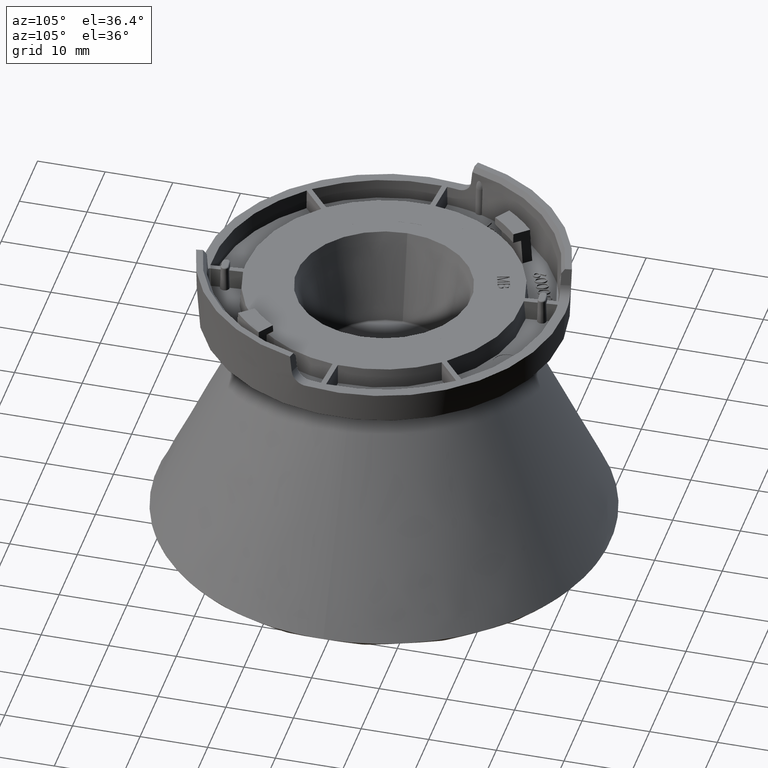
[diagram: clean part render]
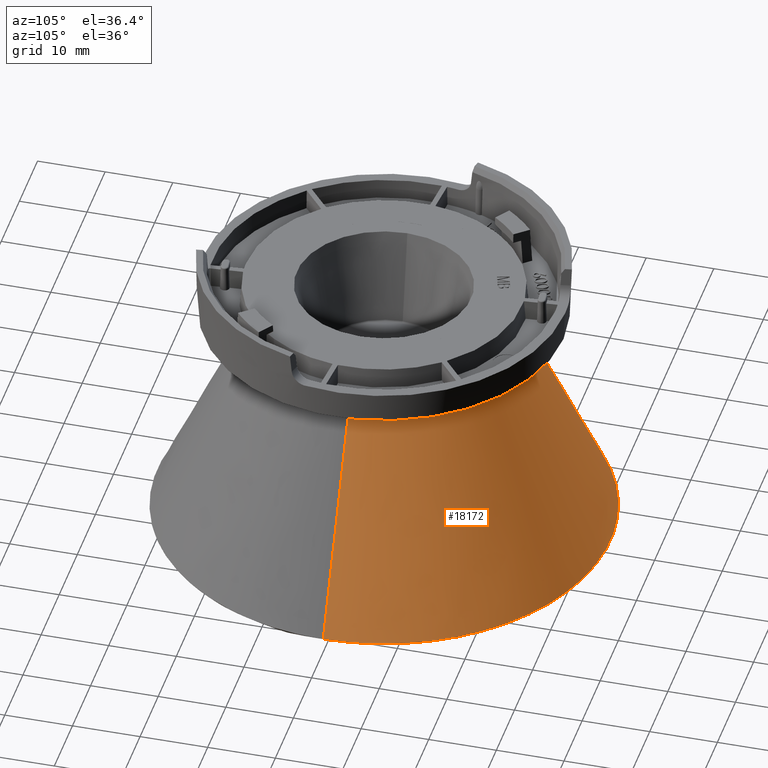
[diagram: same view with one face highlighted and labeled with its STEP entity id]
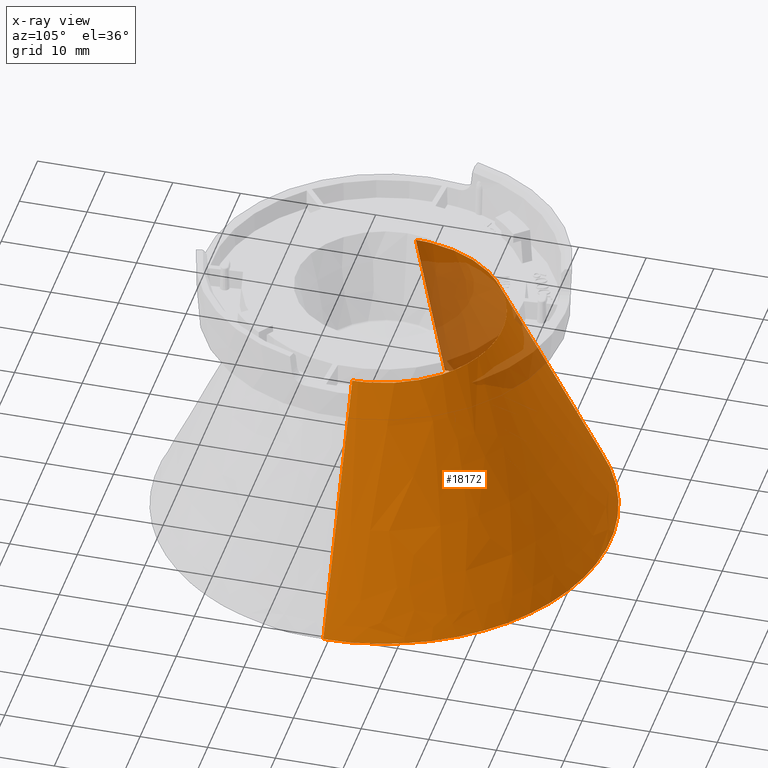
[diagram: x-ray of the same camera — body ghosted, the highlighted face saturated]
A machine part, auxiliary view. The second image highlights one B-rep face of the part: STEP entity #18172.
The next image is the same camera in x-ray: the body ghosted, the highlighted face saturated — about 11% of this face is hidden behind the body in this view.
In plain terms, the highlighted face is a freeform B-spline surface patch.
Its self-contained STEP definition (entity closure, byte-faithful):
#388 = EDGE_LOOP ( 'NONE', ( #26695, #25397, #2798, #29857, #8053, #22278, #1416, #20970, #26440, #20622, #4051, #27792, #10825, #11476, #16475, #12887, #3046, #24440, #25999, #11485 ) ) ;
#485 = DIRECTION ( 'NONE',  ( 0.0000000000000000000, 0.0000000000000000000, -1.000000000000000000 ) ) ;
#748 = VERTEX_POINT ( 'NONE', #23775 ) ;
#792 = DIRECTION ( 'NONE',  ( 0.0000000000000000000, 0.0000000000000000000, -1.000000000000000000 ) ) ;
#827 = DIRECTION ( 'NONE',  ( -1.000000000000000000, 0.0000000000000000000, 0.0000000000000000000 ) ) ;
#1023 = AXIS2_PLACEMENT_3D ( 'NONE', #15466, #1215, #17846 ) ;
#1190 = DIRECTION ( 'NONE',  ( -0.0000000000000000000, -0.0000000000000000000, 1.000000000000000000 ) ) ;
#1215 = DIRECTION ( 'NONE',  ( -0.0000000000000000000, -0.0000000000000000000, 1.000000000000000000 ) ) ;
#1416 = ORIENTED_EDGE ( 'NONE', *, *, #24658, .T. ) ;
#1524 = AXIS2_PLACEMENT_3D ( 'NONE', #14249, #30840, #16612 ) ;
#1616 = VERTEX_POINT ( 'NONE', #22894 ) ;
#1788 = CARTESIAN_POINT ( 'NONE',  ( 17.52564558414977800, 0.0000000000000000000, 4.499999999991946000 ) ) ;
#1894 = CARTESIAN_POINT ( 'NONE',  ( 33.50000000000000000, -66.99999999999998600, 38.99999999999999300 ) ) ;
#2232 = CIRCLE ( 'NONE', #19851, 33.50000000000000000 ) ;
#2598 = EDGE_CURVE ( 'NONE', #3079, #9086, #2232, .T. ) ;
#2798 = ORIENTED_EDGE ( 'NONE', *, *, #26422, .T. ) ;
#3020 = DIRECTION ( 'NONE',  ( 0.0000000000000000000, 0.0000000000000000000, -1.000000000000000000 ) ) ;
#3046 = ORIENTED_EDGE ( 'NONE', *, *, #4147, .T. ) ;
#3053 = CARTESIAN_POINT ( 'NONE',  ( 17.34641902933749300, -2.500000000000003100, 4.500000000000005300 ) ) ;
#3079 = VERTEX_POINT ( 'NONE', #18777 ) ;
#3140 = EDGE_CURVE ( 'NONE', #13909, #28653, #29353, .T. ) ;
#3457 = AXIS2_PLACEMENT_3D ( 'NONE', #3557, #20161, #5965 ) ;
#3557 = CARTESIAN_POINT ( 'NONE',  ( 0.0000000000000000000, 0.0000000000000000000, 4.500000000000010700 ) ) ;
#3862 = DIRECTION ( 'NONE',  ( -0.0000000000000000000, -0.0000000000000000000, 1.000000000000000000 ) ) ;
#4051 = ORIENTED_EDGE ( 'NONE', *, *, #6819, .T. ) ;
#4082 = CARTESIAN_POINT ( 'NONE',  ( -25.66248884448588200, -21.53338492449893600, 38.99999999999999300 ) ) ;
#4147 = EDGE_CURVE ( 'NONE', #19975, #30119, #12921, .T. ) ;
#4191 = CARTESIAN_POINT ( 'NONE',  ( -17.52564558414977100, -35.05129116829954200, 4.499999999991946000 ) ) ;
#4298 = CARTESIAN_POINT ( 'NONE',  ( -33.50000000000000000, -4.102566777143633800E-015, 38.99999999999999300 ) ) ;
#4404 = CARTESIAN_POINT ( 'NONE',  ( 0.0000000000000000000, 0.0000000000000000000, 38.99999999999999300 ) ) ;
#4491 = CARTESIAN_POINT ( 'NONE',  ( -31.47970279632800200, -11.45767480140971300, 38.99999999999999300 ) ) ;
#4810 = EDGE_CURVE ( 'NONE', #26482, #748, #11021, .T. ) ;
#4889 = EDGE_CURVE ( 'NONE', #15135, #8536, #28480, .T. ) ;
#5321 = AXIS2_PLACEMENT_3D ( 'NONE', #17259, #3020, #19631 ) ;
#5607 = CIRCLE ( 'NONE', #11287, 17.52564558415358300 ) ;
#5640 = EDGE_CURVE ( 'NONE', #28753, #28653, #28196, .T. ) ;
#5965 = DIRECTION ( 'NONE',  ( -1.000000000000000000, 0.0000000000000000000, 0.0000000000000000000 ) ) ;
#6586 = CARTESIAN_POINT ( 'NONE',  ( 22.13679779979584300, 0.0000000000000000000, 14.27575171318704900 ) ) ;
#6611 = CARTESIAN_POINT ( 'NONE',  ( -12.76246599057777300, -12.01114961111997900, 4.500000000000005300 ) ) ;
#6676 = EDGE_CURVE ( 'NONE', #25083, #19975, #25093, .T. ) ;
#6737 = VERTEX_POINT ( 'NONE', #14826 ) ;
#6802 = DIRECTION ( 'NONE',  ( -1.000000000000000000, 0.0000000000000000000, 0.0000000000000000000 ) ) ;
#6819 = EDGE_CURVE ( 'NONE', #1616, #14044, #28603, .T. ) ;
#7162 = DIRECTION ( 'NONE',  ( 0.0000000000000000000, 0.0000000000000000000, -1.000000000000000000 ) ) ;
#7272 = CARTESIAN_POINT ( 'NONE',  ( 0.0000000000000000000, 0.0000000000000000000, 38.99999999999999300 ) ) ;
#7552 = AXIS2_PLACEMENT_3D ( 'NONE', #7272, #23895, #9657 ) ;
#7664 = CARTESIAN_POINT ( 'NONE',  ( 0.0000000000000000000, 0.0000000000000000000, 38.99999999999999300 ) ) ;
#8053 = ORIENTED_EDGE ( 'NONE', *, *, #4810, .T. ) ;
#8057 = CIRCLE ( 'NONE', #3457, 17.52564558415358300 ) ;
#8337 = DIRECTION ( 'NONE',  ( -0.0000000000000000000, -0.0000000000000000000, 1.000000000000000000 ) ) ;
#8370 = AXIS2_PLACEMENT_3D ( 'NONE', #27943, #13735, #30321 ) ;
#8435 = CARTESIAN_POINT ( 'NONE',  ( -7.368767004711114200, -15.90124290650397200, 4.500000000000007100 ) ) ;
#8457 = CARTESIAN_POINT ( 'NONE',  ( -17.52564558415358300, -3.124419676953048900E-015, 4.500000000000010700 ) ) ;
#8536 = VERTEX_POINT ( 'NONE', #16483 ) ;
#8572 = CARTESIAN_POINT ( 'NONE',  ( 17.52564558415358300, 0.0000000000000000000, 4.500000000000010700 ) ) ;
#8853 = CIRCLE ( 'NONE', #21692, 17.52564558415358300 ) ;
#8962 = CARTESIAN_POINT ( 'NONE',  ( -22.13679779979583600, -44.27359559959168700, 14.27575171318704900 ) ) ;
#9086 = VERTEX_POINT ( 'NONE', #30603 ) ;
#9479 = CARTESIAN_POINT ( 'NONE',  ( 7.368767004711115100, -15.90124290650396500, 4.500000000000005300 ) ) ;
#9556 = AXIS2_PLACEMENT_3D ( 'NONE', #4404, #21003, #6802 ) ;
#9562 = CIRCLE ( 'NONE', #21589, 33.50000000000000000 ) ;
#9657 = DIRECTION ( 'NONE',  ( -1.000000000000000000, 0.0000000000000000000, 0.0000000000000000000 ) ) ;
#9948 = CIRCLE ( 'NONE', #1023, 17.52564558415358300 ) ;
#10044 = DIRECTION ( 'NONE',  ( -1.000000000000000000, 0.0000000000000000000, 0.0000000000000000000 ) ) ;
#10515 = CARTESIAN_POINT ( 'NONE',  ( 0.0000000000000000000, 0.0000000000000000000, 4.500000000000010700 ) ) ;
#10825 = ORIENTED_EDGE ( 'NONE', *, *, #2598, .T. ) ;
#10842 = CARTESIAN_POINT ( 'NONE',  ( -33.50000000000000000, -4.102566777143633800E-015, 38.99999999999999300 ) ) ;
#10960 = CARTESIAN_POINT ( 'NONE',  ( 33.50000000000000000, 0.0000000000000000000, 38.99999999999999300 ) ) ;
#11021 = CIRCLE ( 'NONE', #29650, 17.52564558415358300 ) ;
#11155 = CIRCLE ( 'NONE', #15684, 33.50000000000000000 ) ;
#11287 = AXIS2_PLACEMENT_3D ( 'NONE', #15444, #1190, #17823 ) ;
#11361 = CARTESIAN_POINT ( 'NONE',  ( 31.83625169696965100, 0.0000000000000000000, 35.36844120951653300 ) ) ;
#11476 = ORIENTED_EDGE ( 'NONE', *, *, #25328, .T. ) ;
#11485 = ORIENTED_EDGE ( 'NONE', *, *, #3140, .T. ) ;
#11963 = EDGE_CURVE ( 'NONE', #14044, #3079, #19287, .T. ) ;
#12159 = AXIS2_PLACEMENT_3D ( 'NONE', #22566, #8337, #24958 ) ;
#12374 = DIRECTION ( 'NONE',  ( 0.0000000000000000000, 0.0000000000000000000, -1.000000000000000000 ) ) ;
#12396 = AXIS2_PLACEMENT_3D ( 'NONE', #7664, #24287, #10044 ) ;
#12464 = CARTESIAN_POINT ( 'NONE',  ( 16.74999999999992900, -29.01185102677873900, 38.99999999999999300 ) ) ;
#12887 = ORIENTED_EDGE ( 'NONE', *, *, #6676, .T. ) ;
#12921 = CIRCLE ( 'NONE', #9556, 33.50000000000000000 ) ;
#12933 = DIRECTION ( 'NONE',  ( -1.000000000000000000, 0.0000000000000000000, 0.0000000000000000000 ) ) ;
#13423 = CARTESIAN_POINT ( 'NONE',  ( 0.0000000000000000000, 0.0000000000000000000, 4.500000000000010700 ) ) ;
#13735 = DIRECTION ( 'NONE',  ( -0.0000000000000000000, -0.0000000000000000000, 1.000000000000000000 ) ) ;
#13767 = CARTESIAN_POINT ( 'NONE',  ( -31.83625169696964400, -63.67250339393928700, 35.36844120951652600 ) ) ;
#13909 = VERTEX_POINT ( 'NONE', #4491 ) ;
#14044 = VERTEX_POINT ( 'NONE', #28876 ) ;
#14179 = AXIS2_PLACEMENT_3D ( 'NONE', #26573, #12374, #28968 ) ;
#14224 = EDGE_CURVE ( 'NONE', #748, #6737, #9948, .T. ) ;
#14249 = CARTESIAN_POINT ( 'NONE',  ( 0.0000000000000000000, 0.0000000000000000000, 4.500000000000010700 ) ) ;
#14412 = EDGE_CURVE ( 'NONE', #15803, #25083, #27401, .T. ) ;
#14752 = CARTESIAN_POINT ( 'NONE',  ( 0.0000000000000000000, 0.0000000000000000000, 38.99999999999999300 ) ) ;
#14753 = EDGE_CURVE ( 'NONE', #26912, #13909, #9562, .T. ) ;
#14826 = CARTESIAN_POINT ( 'NONE',  ( 2.696974576214298000, -17.31688717051890700, 4.499999999991947800 ) ) ;
#14830 = EDGE_CURVE ( 'NONE', #23443, #26482, #8057, .T. ) ;
#15069 = CARTESIAN_POINT ( 'NONE',  ( 0.0000000000000000000, 0.0000000000000000000, 38.99999999999999300 ) ) ;
#15103 = DIRECTION ( 'NONE',  ( 0.0000000000000000000, 0.0000000000000000000, -1.000000000000000000 ) ) ;
#15135 = VERTEX_POINT ( 'NONE', #9479 ) ;
#15392 = FACE_OUTER_BOUND ( 'NONE', #388, .T. ) ;
#15444 = CARTESIAN_POINT ( 'NONE',  ( 0.0000000000000000000, 0.0000000000000000000, 4.500000000000010700 ) ) ;
#15466 = CARTESIAN_POINT ( 'NONE',  ( 0.0000000000000000000, 0.0000000000000000000, 4.500000000000010700 ) ) ;
#15684 = AXIS2_PLACEMENT_3D ( 'NONE', #15069, #792, #17442 ) ;
#15790 = DIRECTION ( 'NONE',  ( -1.000000000000000000, 0.0000000000000000000, 0.0000000000000000000 ) ) ;
#15803 = VERTEX_POINT ( 'NONE', #12464 ) ;
#16132 = CARTESIAN_POINT ( 'NONE',  ( 33.50000000000000000, 0.0000000000000000000, 38.99999999999999300 ) ) ;
#16475 = ORIENTED_EDGE ( 'NONE', *, *, #14412, .T. ) ;
#16483 = CARTESIAN_POINT ( 'NONE',  ( 12.76246599057777000, -12.01114961111997900, 4.500000000000007100 ) ) ;
#16492 = CARTESIAN_POINT ( 'NONE',  ( -33.50000000000000000, -4.102566777143633800E-015, 38.99999999999999300 ) ) ;
#16612 = DIRECTION ( 'NONE',  ( -1.000000000000000000, 0.0000000000000000000, 0.0000000000000000000 ) ) ;
#17123 = DIRECTION ( 'NONE',  ( -1.000000000000000000, 0.0000000000000000000, 0.0000000000000000000 ) ) ;
#17259 = CARTESIAN_POINT ( 'NONE',  ( 0.0000000000000000000, 0.0000000000000000000, 38.99999999999999300 ) ) ;
#17442 = DIRECTION ( 'NONE',  ( -1.000000000000000000, 0.0000000000000000000, 0.0000000000000000000 ) ) ;
#17823 = DIRECTION ( 'NONE',  ( -1.000000000000000000, -8.881784197001252300E-016, 0.0000000000000000000 ) ) ;
#17846 = DIRECTION ( 'NONE',  ( -1.000000000000000000, 0.0000000000000000000, 0.0000000000000000000 ) ) ;
#18094 = CARTESIAN_POINT ( 'NONE',  ( 0.0000000000000000000, 0.0000000000000000000, 4.500000000000010700 ) ) ;
#18172 = ADVANCED_FACE ( 'NONE', ( #15392 ), #22885, .T. ) ;
#18420 = CARTESIAN_POINT ( 'NONE',  ( 17.52564558414977800, -35.05129116829954200, 4.499999999991946000 ) ) ;
#18464 = AXIS2_PLACEMENT_3D ( 'NONE', #10515, #27129, #12933 ) ;
#18516 = CARTESIAN_POINT ( 'NONE',  ( -33.49999999999999300, -66.99999999999998600, 38.99999999999999300 ) ) ;
#18747 = VERTEX_POINT ( 'NONE', #3053 ) ;
#18777 = CARTESIAN_POINT ( 'NONE',  ( 31.47970279632792400, -11.45767480140992900, 38.99999999999999300 ) ) ;
#19287 = CIRCLE ( 'NONE', #14179, 33.50000000000000000 ) ;
#19631 = DIRECTION ( 'NONE',  ( -1.000000000000000000, 0.0000000000000000000, 0.0000000000000000000 ) ) ;
#19851 = AXIS2_PLACEMENT_3D ( 'NONE', #14752, #485, #17123 ) ;
#19975 = VERTEX_POINT ( 'NONE', #25424 ) ;
#20005 = CARTESIAN_POINT ( 'NONE',  ( -17.34641902933375200, -2.499999999999295200, 4.499999999991946000 ) ) ;
#20161 = DIRECTION ( 'NONE',  ( -0.0000000000000000000, -0.0000000000000000000, 1.000000000000000000 ) ) ;
#20462 = DIRECTION ( 'NONE',  ( -1.000000000000000000, 0.0000000000000000000, 0.0000000000000000000 ) ) ;
#20565 = AXIS2_PLACEMENT_3D ( 'NONE', #21365, #7162, #23783 ) ;
#20622 = ORIENTED_EDGE ( 'NONE', *, *, #29221, .T. ) ;
#20790 = CARTESIAN_POINT ( 'NONE',  ( -17.52564558414977800, -2.146272576761997000E-015, 4.499999999991946000 ) ) ;
#20821 = CIRCLE ( 'NONE', #18464, 17.52564558415358300 ) ;
#20970 = ORIENTED_EDGE ( 'NONE', *, *, #4889, .T. ) ;
#21003 = DIRECTION ( 'NONE',  ( 0.0000000000000000000, 0.0000000000000000000, -1.000000000000000000 ) ) ;
#21365 = CARTESIAN_POINT ( 'NONE',  ( 0.0000000000000000000, 0.0000000000000000000, 38.99999999999999300 ) ) ;
#21589 = AXIS2_PLACEMENT_3D ( 'NONE', #29316, #15103, #827 ) ;
#21692 = AXIS2_PLACEMENT_3D ( 'NONE', #18094, #3862, #20462 ) ;
#22278 = ORIENTED_EDGE ( 'NONE', *, *, #14224, .T. ) ;
#22566 = CARTESIAN_POINT ( 'NONE',  ( 0.0000000000000000000, 0.0000000000000000000, 4.500000000000010700 ) ) ;
#22689 = CARTESIAN_POINT ( 'NONE',  ( -22.13679779980118300, -2.710975856889867800E-015, 14.27575171319865200 ) ) ;
#22808 = CARTESIAN_POINT ( 'NONE',  ( 22.13679779980118300, 0.0000000000000000000, 14.27575171319865200 ) ) ;
#22885 =( BOUNDED_SURFACE ( )  B_SPLINE_SURFACE ( 3, 3, ( 
 ( #1788, #18420, #4191, #20790 ),
 ( #6586, #23199, #8962, #25589 ),
 ( #11361, #27969, #13767, #30350 ),
 ( #16132, #1894, #18516, #4298 ) ),
 .UNSPECIFIED., .F., .F., .F. ) 
 B_SPLINE_SURFACE_WITH_KNOTS ( ( 4, 4 ),
 ( 4, 4 ),
 ( 0.1801735269628146100, 1.000000000000000000 ),
 ( 0.0000000000000000000, 1.000000000000000000 ),
 .UNSPECIFIED. ) 
 GEOMETRIC_REPRESENTATION_ITEM ( )  RATIONAL_B_SPLINE_SURFACE ( (
 ( 1.000000000000000000, 0.3333333333333334300, 0.3333333333333334300, 1.000000000000000000),
 ( 1.000000000000000000, 0.3333333333333334300, 0.3333333333333334300, 1.000000000000000000),
 ( 1.000000000000000000, 0.3333333333333334300, 0.3333333333333334300, 1.000000000000000000),
 ( 1.000000000000000000, 0.3333333333333334300, 0.3333333333333334300, 1.000000000000000000) ) ) 
 REPRESENTATION_ITEM ( '' )  SURFACE ( )  );
#22894 = CARTESIAN_POINT ( 'NONE',  ( 17.52564558415358300, 0.0000000000000000000, 4.500000000000010700 ) ) ;
#22994 = CIRCLE ( 'NONE', #12159, 17.52564558415358300 ) ;
#23199 = CARTESIAN_POINT ( 'NONE',  ( 22.13679779979584300, -44.27359559959168700, 14.27575171318704900 ) ) ;
#23443 = VERTEX_POINT ( 'NONE', #6611 ) ;
#23775 = CARTESIAN_POINT ( 'NONE',  ( -2.696974576215007700, -17.31688717052264400, 4.500000000000005300 ) ) ;
#23783 = DIRECTION ( 'NONE',  ( -1.000000000000000000, 0.0000000000000000000, 0.0000000000000000000 ) ) ;
#23895 = DIRECTION ( 'NONE',  ( 0.0000000000000000000, 0.0000000000000000000, -1.000000000000000000 ) ) ;
#24213 = CIRCLE ( 'NONE', #1524, 17.52564558415358300 ) ;
#24287 = DIRECTION ( 'NONE',  ( 0.0000000000000000000, 0.0000000000000000000, -1.000000000000000000 ) ) ;
#24440 = ORIENTED_EDGE ( 'NONE', *, *, #27249, .T. ) ;
#24658 = EDGE_CURVE ( 'NONE', #6737, #15135, #5607, .T. ) ;
#24958 = DIRECTION ( 'NONE',  ( -1.000000000000000000, 9.769962616701377600E-015, 0.0000000000000000000 ) ) ;
#25080 = CARTESIAN_POINT ( 'NONE',  ( -31.83625169697010900, -3.898816373754392900E-015, 35.36844120951752800 ) ) ;
#25083 = VERTEX_POINT ( 'NONE', #26004 ) ;
#25093 = CIRCLE ( 'NONE', #12396, 33.50000000000000000 ) ;
#25196 = CARTESIAN_POINT ( 'NONE',  ( 31.83625169697010900, 0.0000000000000000000, 35.36844120951752800 ) ) ;
#25328 = EDGE_CURVE ( 'NONE', #9086, #15803, #29727, .T. ) ;
#25397 = ORIENTED_EDGE ( 'NONE', *, *, #25747, .T. ) ;
#25424 = CARTESIAN_POINT ( 'NONE',  ( -5.817213951842287400, -32.99105972590895400, 38.99999999999999300 ) ) ;
#25589 = CARTESIAN_POINT ( 'NONE',  ( -22.13679779979584300, -2.710975856889215100E-015, 14.27575171318704900 ) ) ;
#25747 = EDGE_CURVE ( 'NONE', #28753, #25839, #24213, .T. ) ;
#25839 = VERTEX_POINT ( 'NONE', #20005 ) ;
#25999 = ORIENTED_EDGE ( 'NONE', *, *, #14753, .T. ) ;
#26004 = CARTESIAN_POINT ( 'NONE',  ( 5.817213951842061800, -32.99105972590899000, 38.99999999999999300 ) ) ;
#26355 = CARTESIAN_POINT ( 'NONE',  ( -17.52564558415358300, -3.124419676953048900E-015, 4.500000000000010700 ) ) ;
#26422 = EDGE_CURVE ( 'NONE', #25839, #23443, #20821, .T. ) ;
#26440 = ORIENTED_EDGE ( 'NONE', *, *, #29270, .T. ) ;
#26482 = VERTEX_POINT ( 'NONE', #8435 ) ;
#26573 = CARTESIAN_POINT ( 'NONE',  ( 0.0000000000000000000, 0.0000000000000000000, 38.99999999999999300 ) ) ;
#26695 = ORIENTED_EDGE ( 'NONE', *, *, #5640, .F. ) ;
#26912 = VERTEX_POINT ( 'NONE', #4082 ) ;
#27129 = DIRECTION ( 'NONE',  ( -0.0000000000000000000, -0.0000000000000000000, 1.000000000000000000 ) ) ;
#27249 = EDGE_CURVE ( 'NONE', #30119, #26912, #11155, .T. ) ;
#27401 = CIRCLE ( 'NONE', #20565, 33.50000000000000000 ) ;
#27792 = ORIENTED_EDGE ( 'NONE', *, *, #11963, .T. ) ;
#27943 = CARTESIAN_POINT ( 'NONE',  ( 0.0000000000000000000, 0.0000000000000000000, 4.500000000000010700 ) ) ;
#27969 = CARTESIAN_POINT ( 'NONE',  ( 31.83625169696965400, -63.67250339393928700, 35.36844120951652600 ) ) ;
#28196 = B_SPLINE_CURVE_WITH_KNOTS ( 'NONE', 3,
 ( #8457, #22689, #25080, #10842 ),
 .UNSPECIFIED., .F., .F.,
 ( 4, 4 ),
 ( 0.1801735269630400600, 1.000000000000000000 ),
 .UNSPECIFIED. ) ;
#28480 = CIRCLE ( 'NONE', #8370, 17.52564558415358300 ) ;
#28603 = B_SPLINE_CURVE_WITH_KNOTS ( 'NONE', 3,
 ( #8572, #22808, #25196, #10960 ),
 .UNSPECIFIED., .F., .F.,
 ( 4, 4 ),
 ( 0.1801735269630400600, 1.000000000000000000 ),
 .UNSPECIFIED. ) ;
#28653 = VERTEX_POINT ( 'NONE', #16492 ) ;
#28753 = VERTEX_POINT ( 'NONE', #26355 ) ;
#28876 = CARTESIAN_POINT ( 'NONE',  ( 33.50000000000000000, 0.0000000000000000000, 38.99999999999999300 ) ) ;
#28968 = DIRECTION ( 'NONE',  ( -1.000000000000000000, 0.0000000000000000000, 0.0000000000000000000 ) ) ;
#29221 = EDGE_CURVE ( 'NONE', #18747, #1616, #22994, .T. ) ;
#29270 = EDGE_CURVE ( 'NONE', #8536, #18747, #8853, .T. ) ;
#29316 = CARTESIAN_POINT ( 'NONE',  ( 0.0000000000000000000, 0.0000000000000000000, 38.99999999999999300 ) ) ;
#29353 = CIRCLE ( 'NONE', #7552, 33.50000000000000000 ) ;
#29650 = AXIS2_PLACEMENT_3D ( 'NONE', #13423, #30012, #15790 ) ;
#29727 = CIRCLE ( 'NONE', #5321, 33.50000000000000000 ) ;
#29857 = ORIENTED_EDGE ( 'NONE', *, *, #14830, .T. ) ;
#29876 = CARTESIAN_POINT ( 'NONE',  ( -16.75000000000013100, -29.01185102677861500, 38.99999999999999300 ) ) ;
#30012 = DIRECTION ( 'NONE',  ( -0.0000000000000000000, -0.0000000000000000000, 1.000000000000000000 ) ) ;
#30119 = VERTEX_POINT ( 'NONE', #29876 ) ;
#30321 = DIRECTION ( 'NONE',  ( -1.000000000000000000, 0.0000000000000000000, 0.0000000000000000000 ) ) ;
#30350 = CARTESIAN_POINT ( 'NONE',  ( -31.83625169696965100, -3.898816373754337700E-015, 35.36844120951653300 ) ) ;
#30603 = CARTESIAN_POINT ( 'NONE',  ( 25.66248884448574000, -21.53338492449910600, 38.99999999999999300 ) ) ;
#30840 = DIRECTION ( 'NONE',  ( -0.0000000000000000000, -0.0000000000000000000, 1.000000000000000000 ) ) ;